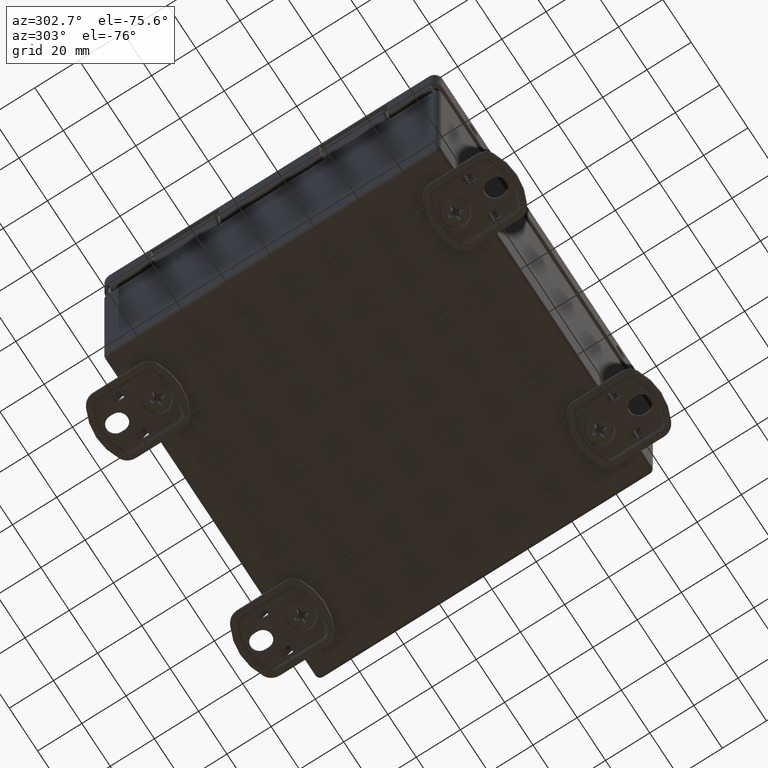
[diagram: clean part render]
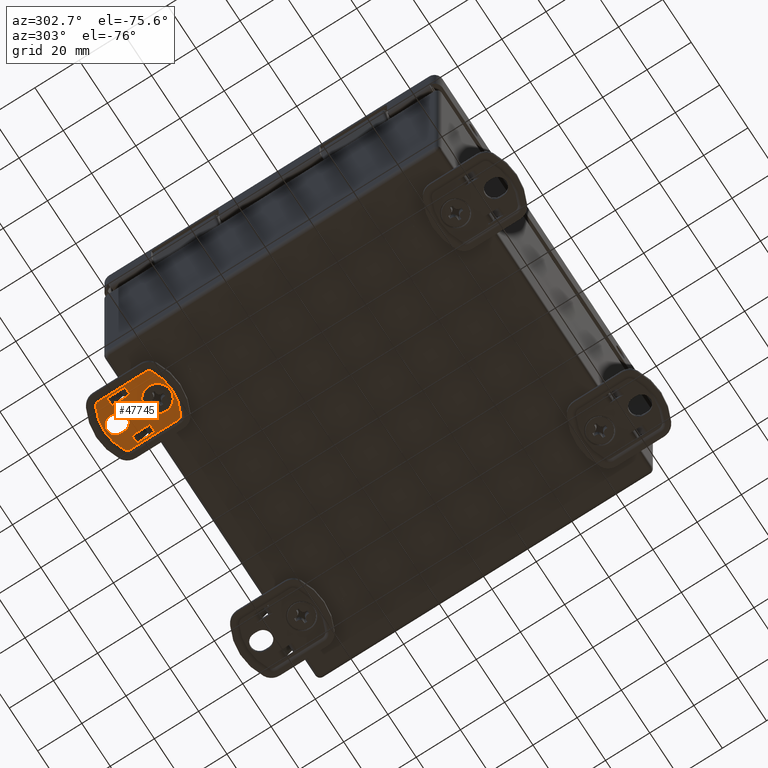
[diagram: same view with one face highlighted and labeled with its STEP entity id]
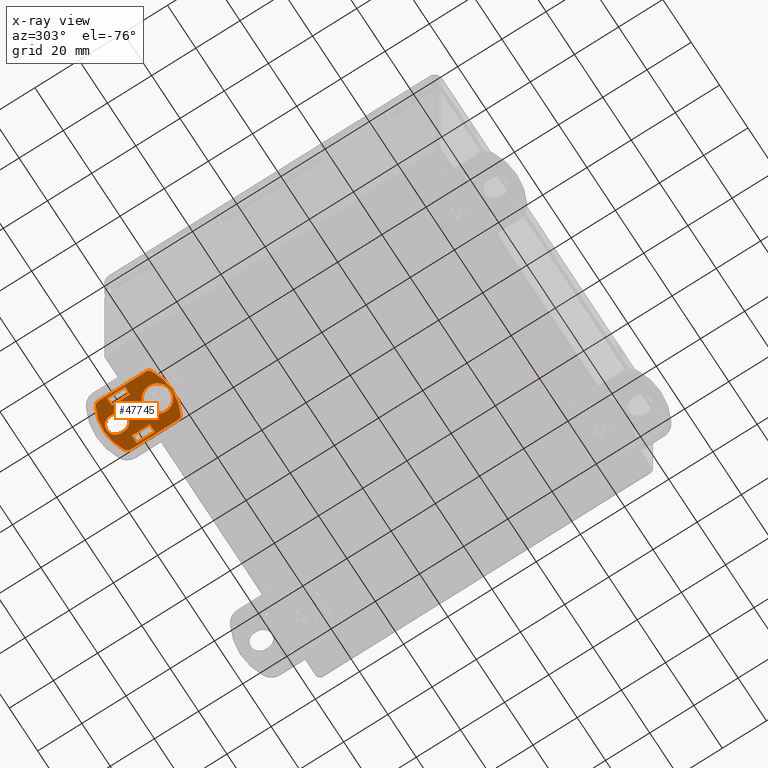
[diagram: x-ray of the same camera — body ghosted, the highlighted face saturated]
A machine part, auxiliary view. The second image highlights one B-rep face of the part: STEP entity #47745.
The next image is the same camera in x-ray: the body ghosted, the highlighted face saturated — about 0% of this face is hidden behind the body in this view.
In plain terms, the highlighted planar face has unit normal (0, 0, 1).
Its self-contained STEP definition (entity closure, byte-faithful):
#2008=FACE_BOUND('',#7560,.T.);
#2009=FACE_BOUND('',#7561,.T.);
#2010=FACE_BOUND('',#7562,.T.);
#2011=FACE_BOUND('',#7563,.T.);
#3178=PLANE('',#51626);
#4576=FACE_OUTER_BOUND('',#7559,.T.);
#7559=EDGE_LOOP('',(#34456,#34457,#34458,#34459,#34460,#34461,#34462,#34463));
#7560=EDGE_LOOP('',(#34464,#34465,#34466,#34467,#34468,#34469,#34470,#34471));
#7561=EDGE_LOOP('',(#34472,#34473,#34474,#34475,#34476,#34477,#34478,#34479));
#7562=EDGE_LOOP('',(#34480,#34481,#34482,#34483));
#7563=EDGE_LOOP('',(#34484));
#10930=LINE('',#72785,#14958);
#10943=LINE('',#72826,#14971);
#10948=LINE('',#72840,#14976);
#10965=LINE('',#72897,#14993);
#10968=LINE('',#72903,#14996);
#10971=LINE('',#72909,#14999);
#10976=LINE('',#72919,#15004);
#10981=LINE('',#72929,#15009);
#10987=LINE('',#72941,#15015);
#10990=LINE('',#72947,#15018);
#10994=LINE('',#72955,#15022);
#10997=LINE('',#72961,#15025);
#11000=LINE('',#72972,#15028);
#11001=LINE('',#72980,#15029);
#11002=LINE('',#72982,#15030);
#11003=LINE('',#72983,#15031);
#11004=LINE('',#72984,#15032);
#11005=LINE('',#72985,#15033);
#11006=LINE('',#72990,#15034);
#11007=LINE('',#72993,#15035);
#14958=VECTOR('',#57657,10.);
#14971=VECTOR('',#57692,10.);
#14976=VECTOR('',#57705,10.);
#14993=VECTOR('',#57754,10.);
#14996=VECTOR('',#57761,10.);
#14999=VECTOR('',#57766,10.);
#15004=VECTOR('',#57775,10.);
#15009=VECTOR('',#57786,10.);
#15015=VECTOR('',#57798,10.);
#15018=VECTOR('',#57803,10.);
#15022=VECTOR('',#57809,10.);
#15025=VECTOR('',#57814,10.);
#15028=VECTOR('',#57823,10.);
#15029=VECTOR('',#57830,10.);
#15030=VECTOR('',#57833,10.);
#15031=VECTOR('',#57834,10.);
#15032=VECTOR('',#57835,10.);
#15033=VECTOR('',#57836,10.);
#15034=VECTOR('',#57839,10.);
#15035=VECTOR('',#57842,10.);
#18468=CIRCLE('',#51627,21.2928932188135);
#18469=CIRCLE('',#51628,2.29289321881345);
#18470=CIRCLE('',#51629,2.29289321881345);
#18471=CIRCLE('',#51630,21.2928932188135);
#18472=CIRCLE('',#51631,2.29289321881345);
#18473=CIRCLE('',#51632,2.29289321881345);
#18474=CIRCLE('',#51633,3.9624);
#18475=CIRCLE('',#51634,3.9624);
#18476=CIRCLE('',#51635,6.);
#20804=VERTEX_POINT('',#72782);
#20805=VERTEX_POINT('',#72784);
#20819=VERTEX_POINT('',#72818);
#20822=VERTEX_POINT('',#72824);
#20826=VERTEX_POINT('',#72837);
#20827=VERTEX_POINT('',#72839);
#20834=VERTEX_POINT('',#72855);
#20849=VERTEX_POINT('',#72889);
#20852=VERTEX_POINT('',#72902);
#20854=VERTEX_POINT('',#72908);
#20857=VERTEX_POINT('',#72918);
#20859=VERTEX_POINT('',#72928);
#20862=VERTEX_POINT('',#72940);
#20864=VERTEX_POINT('',#72946);
#20867=VERTEX_POINT('',#72954);
#20869=VERTEX_POINT('',#72960);
#20871=VERTEX_POINT('',#72966);
#20872=VERTEX_POINT('',#72967);
#20873=VERTEX_POINT('',#72969);
#20874=VERTEX_POINT('',#72971);
#20875=VERTEX_POINT('',#72973);
#20876=VERTEX_POINT('',#72975);
#20877=VERTEX_POINT('',#72977);
#20878=VERTEX_POINT('',#72979);
#20879=VERTEX_POINT('',#72986);
#20880=VERTEX_POINT('',#72987);
#20881=VERTEX_POINT('',#72989);
#20882=VERTEX_POINT('',#72991);
#20883=VERTEX_POINT('',#72994);
#25770=EDGE_CURVE('',#20804,#20805,#10930,.T.);
#25791=EDGE_CURVE('',#20822,#20819,#10943,.T.);
#25797=EDGE_CURVE('',#20826,#20827,#10948,.T.);
#25826=EDGE_CURVE('',#20849,#20834,#10965,.T.);
#25829=EDGE_CURVE('',#20849,#20852,#10968,.T.);
#25832=EDGE_CURVE('',#20854,#20834,#10971,.T.);
#25837=EDGE_CURVE('',#20857,#20827,#10976,.T.);
#25842=EDGE_CURVE('',#20859,#20819,#10981,.T.);
#25848=EDGE_CURVE('',#20822,#20862,#10987,.T.);
#25851=EDGE_CURVE('',#20804,#20864,#10990,.T.);
#25855=EDGE_CURVE('',#20867,#20805,#10994,.T.);
#25858=EDGE_CURVE('',#20826,#20869,#10997,.T.);
#25861=EDGE_CURVE('',#20871,#20872,#18468,.T.);
#25862=EDGE_CURVE('',#20873,#20871,#18469,.T.);
#25863=EDGE_CURVE('',#20874,#20873,#11000,.T.);
#25864=EDGE_CURVE('',#20875,#20874,#18470,.T.);
#25865=EDGE_CURVE('',#20876,#20875,#18471,.T.);
#25866=EDGE_CURVE('',#20877,#20876,#18472,.T.);
#25867=EDGE_CURVE('',#20878,#20877,#11001,.T.);
#25868=EDGE_CURVE('',#20872,#20878,#18473,.T.);
#25869=EDGE_CURVE('',#20864,#20859,#11002,.T.);
#25870=EDGE_CURVE('',#20862,#20867,#11003,.T.);
#25871=EDGE_CURVE('',#20869,#20854,#11004,.T.);
#25872=EDGE_CURVE('',#20852,#20857,#11005,.T.);
#25873=EDGE_CURVE('',#20879,#20880,#18474,.T.);
#25874=EDGE_CURVE('',#20880,#20881,#11006,.T.);
#25875=EDGE_CURVE('',#20881,#20882,#18475,.T.);
#25876=EDGE_CURVE('',#20882,#20879,#11007,.T.);
#25877=EDGE_CURVE('',#20883,#20883,#18476,.T.);
#34456=ORIENTED_EDGE('',*,*,#25861,.F.);
#34457=ORIENTED_EDGE('',*,*,#25862,.F.);
#34458=ORIENTED_EDGE('',*,*,#25863,.F.);
#34459=ORIENTED_EDGE('',*,*,#25864,.F.);
#34460=ORIENTED_EDGE('',*,*,#25865,.F.);
#34461=ORIENTED_EDGE('',*,*,#25866,.F.);
#34462=ORIENTED_EDGE('',*,*,#25867,.F.);
#34463=ORIENTED_EDGE('',*,*,#25868,.F.);
#34464=ORIENTED_EDGE('',*,*,#25770,.F.);
#34465=ORIENTED_EDGE('',*,*,#25851,.T.);
#34466=ORIENTED_EDGE('',*,*,#25869,.T.);
#34467=ORIENTED_EDGE('',*,*,#25842,.T.);
#34468=ORIENTED_EDGE('',*,*,#25791,.F.);
#34469=ORIENTED_EDGE('',*,*,#25848,.T.);
#34470=ORIENTED_EDGE('',*,*,#25870,.T.);
#34471=ORIENTED_EDGE('',*,*,#25855,.T.);
#34472=ORIENTED_EDGE('',*,*,#25797,.F.);
#34473=ORIENTED_EDGE('',*,*,#25858,.T.);
#34474=ORIENTED_EDGE('',*,*,#25871,.T.);
#34475=ORIENTED_EDGE('',*,*,#25832,.T.);
#34476=ORIENTED_EDGE('',*,*,#25826,.F.);
#34477=ORIENTED_EDGE('',*,*,#25829,.T.);
#34478=ORIENTED_EDGE('',*,*,#25872,.T.);
#34479=ORIENTED_EDGE('',*,*,#25837,.T.);
#34480=ORIENTED_EDGE('',*,*,#25873,.T.);
#34481=ORIENTED_EDGE('',*,*,#25874,.T.);
#34482=ORIENTED_EDGE('',*,*,#25875,.T.);
#34483=ORIENTED_EDGE('',*,*,#25876,.T.);
#34484=ORIENTED_EDGE('',*,*,#25877,.F.);
#47745=ADVANCED_FACE('',(#4576,#2008,#2009,#2010,#2011),#3178,.F.);
#51626=AXIS2_PLACEMENT_3D('',#72965,#57817,#57818);
#51627=AXIS2_PLACEMENT_3D('',#72968,#57819,#57820);
#51628=AXIS2_PLACEMENT_3D('',#72970,#57821,#57822);
#51629=AXIS2_PLACEMENT_3D('',#72974,#57824,#57825);
#51630=AXIS2_PLACEMENT_3D('',#72976,#57826,#57827);
#51631=AXIS2_PLACEMENT_3D('',#72978,#57828,#57829);
#51632=AXIS2_PLACEMENT_3D('',#72981,#57831,#57832);
#51633=AXIS2_PLACEMENT_3D('',#72988,#57837,#57838);
#51634=AXIS2_PLACEMENT_3D('',#72992,#57840,#57841);
#51635=AXIS2_PLACEMENT_3D('',#72995,#57843,#57844);
#57657=DIRECTION('',(1.,-3.70074341541719E-16,0.));
#57692=DIRECTION('',(-1.,3.70074341541719E-16,0.));
#57705=DIRECTION('',(-1.,-3.70074341541719E-16,0.));
#57754=DIRECTION('',(1.,3.70074341541719E-16,0.));
#57761=DIRECTION('',(-1.,4.37095678985558E-13,0.));
#57766=DIRECTION('',(-1.,-8.74191357973409E-13,0.));
#57775=DIRECTION('',(1.,0.,0.));
#57786=DIRECTION('',(1.,-1.31128703696355E-12,0.));
#57798=DIRECTION('',(1.,2.18547839492015E-12,0.));
#57803=DIRECTION('',(-1.,1.74838271594682E-12,0.));
#57809=DIRECTION('',(-1.,-2.18547839492779E-12,0.));
#57814=DIRECTION('',(1.,0.,0.));
#57817=DIRECTION('center_axis',(0.,0.,1.));
#57818=DIRECTION('ref_axis',(1.,0.,0.));
#57819=DIRECTION('center_axis',(0.,0.,1.));
#57820=DIRECTION('ref_axis',(0.,1.,0.));
#57821=DIRECTION('center_axis',(0.,0.,1.));
#57822=DIRECTION('ref_axis',(0.858395075278952,0.512989176042577,0.));
#57823=DIRECTION('',(2.0687641518511E-16,1.,0.));
#57824=DIRECTION('center_axis',(0.,0.,1.));
#57825=DIRECTION('ref_axis',(0.858395075278952,-0.512989176042578,0.));
#57826=DIRECTION('center_axis',(0.,0.,1.));
#57827=DIRECTION('ref_axis',(-7.2293592301173E-16,-1.,0.));
#57828=DIRECTION('center_axis',(0.,0.,1.));
#57829=DIRECTION('ref_axis',(-0.858395075278952,-0.512989176042577,0.));
#57830=DIRECTION('',(-1.29297759490694E-16,-1.,0.));
#57831=DIRECTION('center_axis',(0.,0.,1.));
#57832=DIRECTION('ref_axis',(-0.858395075278952,0.512989176042577,0.));
#57833=DIRECTION('',(0.,-1.,0.));
#57834=DIRECTION('',(-3.70074341541719E-16,1.,0.));
#57835=DIRECTION('',(0.,1.,0.));
#57836=DIRECTION('',(0.,-1.,0.));
#57837=DIRECTION('center_axis',(0.,0.,1.));
#57838=DIRECTION('ref_axis',(1.,5.60379075623439E-16,0.));
#57839=DIRECTION('',(7.04814007507083E-16,-1.,0.));
#57840=DIRECTION('center_axis',(0.,0.,1.));
#57841=DIRECTION('ref_axis',(-1.,0.,0.));
#57842=DIRECTION('',(-7.04814007507083E-16,1.,0.));
#57843=DIRECTION('center_axis',(0.,0.,-1.));
#57844=DIRECTION('ref_axis',(-1.,0.,0.));
#72782=CARTESIAN_POINT('',(7.00254,7.3777101810391,-2.77555756156289E-16));
#72784=CARTESIAN_POINT('',(10.50254,7.3777101810391,-2.77555756156289E-16));
#72785=CARTESIAN_POINT('',(5.25127,7.3777101810391,0.));
#72818=CARTESIAN_POINT('',(7.00253999999999,-0.799999999999996,-2.77555756156289E-16));
#72824=CARTESIAN_POINT('',(10.50254,-0.799999999999998,0.));
#72826=CARTESIAN_POINT('',(5.25126999999999,-0.799999999999997,0.));
#72837=CARTESIAN_POINT('',(-7.00253999999999,-0.799999999999996,0.));
#72839=CARTESIAN_POINT('',(-10.50254,-0.799999999999998,-2.77555756156289E-16));
#72840=CARTESIAN_POINT('',(-5.25127,-0.799999999999997,0.));
#72855=CARTESIAN_POINT('',(-7.00254,7.3777101810391,-2.77555756156289E-16));
#72889=CARTESIAN_POINT('',(-10.50254,7.3777101810391,-2.77555756156289E-16));
#72897=CARTESIAN_POINT('',(-5.25127,7.3777101810391,0.));
#72902=CARTESIAN_POINT('',(-10.50508,7.3777101810391,-2.77555756156289E-16));
#72903=CARTESIAN_POINT('',(-5.25126999999839,7.3777101810368,0.));
#72908=CARTESIAN_POINT('',(-7.,7.3777101810391,-2.77555756156289E-16));
#72909=CARTESIAN_POINT('',(-3.50000000000323,7.37771018104216,0.));
#72918=CARTESIAN_POINT('',(-10.50508,-0.799999999999998,-2.77555756156289E-16));
#72919=CARTESIAN_POINT('',(-5.25254,-0.799999999999998,0.));
#72928=CARTESIAN_POINT('',(7.,-0.799999999999993,-2.77555756156289E-16));
#72929=CARTESIAN_POINT('',(3.49999999999947,-0.799999999995403,0.));
#72940=CARTESIAN_POINT('',(10.50508,-0.799999999999993,0.));
#72941=CARTESIAN_POINT('',(5.25127000000087,-0.800000000011475,0.));
#72946=CARTESIAN_POINT('',(7.,7.3777101810391,-2.77555756156289E-16));
#72947=CARTESIAN_POINT('',(3.50127000000644,7.37771018104522,0.));
#72954=CARTESIAN_POINT('',(10.50508,7.3777101810391,-2.77555756156289E-16));
#72955=CARTESIAN_POINT('',(5.25253999999193,7.37771018102762,0.));
#72960=CARTESIAN_POINT('',(-7.,-0.799999999999996,0.));
#72961=CARTESIAN_POINT('',(-3.50127,-0.799999999999996,0.));
#72965=CARTESIAN_POINT('Origin',(-5.55111512312578E-15,-5.55111512312578E-16,
0.));
#72966=CARTESIAN_POINT('',(10.0861073141748,12.7525395846734,0.));
#72967=CARTESIAN_POINT('',(-10.0861073141748,12.7525395846734,0.));
#72968=CARTESIAN_POINT('Origin',(-8.88178419700125E-15,-6.,0.));
#72969=CARTESIAN_POINT('',(11.2928932188134,10.7332005306815,0.));
#72970=CARTESIAN_POINT('Origin',(8.99999999999999,10.7332005306815,0.));
#72971=CARTESIAN_POINT('',(11.2928932188134,-10.7332005306815,0.));
#72972=CARTESIAN_POINT('',(11.2928932188134,-5.36660026534076,0.));
#72973=CARTESIAN_POINT('',(10.0861073141748,-12.7525395846734,0.));
#72974=CARTESIAN_POINT('Origin',(8.99999999999999,-10.7332005306815,0.));
#72975=CARTESIAN_POINT('',(-10.0861073141748,-12.7525395846734,0.));
#72976=CARTESIAN_POINT('Origin',(-2.22044604925031E-15,6.,0.));
#72977=CARTESIAN_POINT('',(-11.2928932188135,-10.7332005306815,0.));
#72978=CARTESIAN_POINT('Origin',(-9.00000000000001,-10.7332005306815,0.));
#72979=CARTESIAN_POINT('',(-11.2928932188135,10.7332005306815,0.));
#72980=CARTESIAN_POINT('',(-11.2928932188135,5.36660026534076,0.));
#72981=CARTESIAN_POINT('Origin',(-9.,10.7332005306815,0.));
#72982=CARTESIAN_POINT('',(7.,3.68885509051955,0.));
#72983=CARTESIAN_POINT('',(10.50508,4.99694359964072E-15,0.));
#72984=CARTESIAN_POINT('',(-7.,1.38777878078145E-15,0.));
#72985=CARTESIAN_POINT('',(-10.50508,3.68885509051955,0.));
#72986=CARTESIAN_POINT('',(3.9624,10.3126,0.));
#72987=CARTESIAN_POINT('',(-3.9624,10.3126,0.));
#72988=CARTESIAN_POINT('Origin',(-4.60629803614512E-16,10.3126,0.));
#72989=CARTESIAN_POINT('',(-3.9624,8.7374,0.));
#72990=CARTESIAN_POINT('',(-3.9624,4.3687,0.));
#72991=CARTESIAN_POINT('',(3.9624,8.7374,0.));
#72992=CARTESIAN_POINT('Origin',(0.,8.7374,0.));
#72993=CARTESIAN_POINT('',(3.9624,5.1563,0.));
#72994=CARTESIAN_POINT('',(6.,-8.7376,0.));
#72995=CARTESIAN_POINT('Origin',(0.,-8.7376,0.));